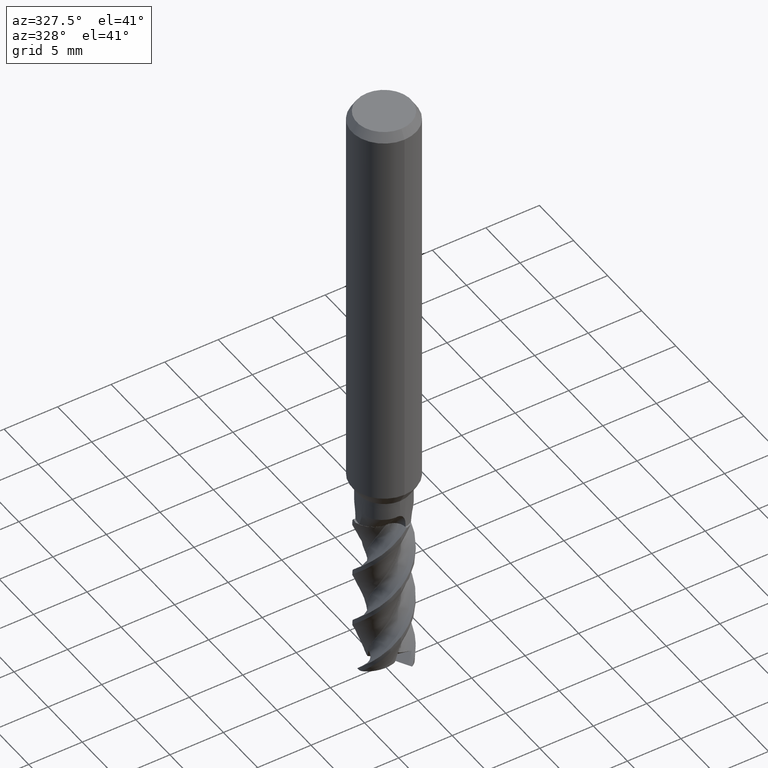
[diagram: clean part render]
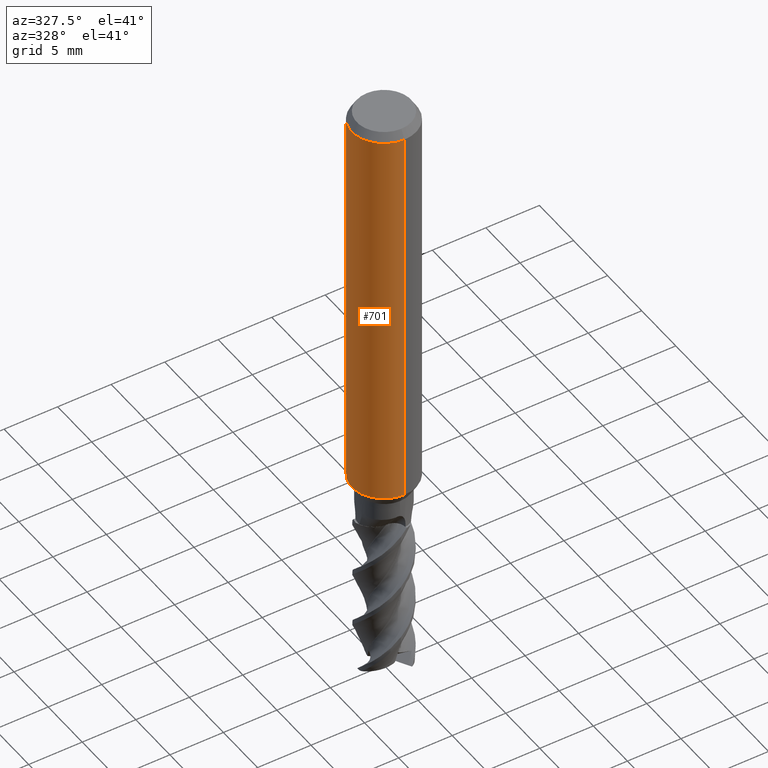
[diagram: same view with one face highlighted and labeled with its STEP entity id]
A machine part, auxiliary view. The second image highlights one B-rep face of the part: STEP entity #701.
In plain terms, the highlighted cylindrical surface (partial cylindrical patch) has radius 3 mm, axis along (-0, -0, 1).
Its self-contained STEP definition (entity closure, byte-faithful):
#487=EDGE_CURVE('',#821,#565,#1403,.T.);
#495=EDGE_CURVE('',#1071,#1151,#1412,.T.);
#565=VERTEX_POINT('',#1494);
#575=EDGE_CURVE('',#565,#1249,#1505,.T.);
#607=EDGE_CURVE('',#1151,#961,#1542,.T.);
#661=EDGE_CURVE('',#1065,#821,#1599,.T.);
#663=EDGE_CURVE('',#807,#961,#1601,.T.);
#697=EDGE_CURVE('',#731,#1071,#1637,.T.);
#701=ADVANCED_FACE('',(#1641,#1642,#1643),#1644,.T.);
#703=EDGE_CURVE('',#709,#731,#1646,.T.);
#709=VERTEX_POINT('',#1653);
#731=VERTEX_POINT('',#1680);
#777=VERTEX_POINT('',#1729);
#807=VERTEX_POINT('',#1762);
#809=VERTEX_POINT('',#1764);
#821=VERTEX_POINT('',#1776);
#831=VERTEX_POINT('',#1787);
#847=EDGE_CURVE('',#1051,#777,#1803,.T.);
#855=EDGE_CURVE('',#1089,#1051,#1812,.T.);
#857=EDGE_CURVE('',#807,#1295,#1814,.T.);
#867=EDGE_CURVE('',#777,#1089,#1824,.T.);
#961=VERTEX_POINT('',#1925);
#977=EDGE_CURVE('',#1249,#809,#1941,.T.);
#1051=VERTEX_POINT('',#2021);
#1059=EDGE_CURVE('',#831,#709,#2029,.T.);
#1065=VERTEX_POINT('',#2035);
#1071=VERTEX_POINT('',#2041);
#1089=VERTEX_POINT('',#2060);
#1151=VERTEX_POINT('',#2128);
#1165=EDGE_CURVE('',#809,#1065,#2144,.T.);
#1209=EDGE_CURVE('',#1295,#831,#2195,.T.);
#1249=VERTEX_POINT('',#2236);
#1295=VERTEX_POINT('',#2285);
#1403=B_SPLINE_CURVE_WITH_KNOTS('',3,(#2407,#2408,#2409,#2410,#2411,#2412,#2413,#2414,#2415,#2416,#2417,#2418,#2419,#2420,#2421,#2422,#2423,#2424,#2425,#2426,#2427,#2428,#2429,#2430,#2431,#2432,#2433),.UNSPECIFIED.,.F.,.F.,(4,2,3,2,2,2,2,2,2,2,2,2,4),(-0.361797878080094,-0.180898939040047,0.0,0.180898939040045,0.36179787808009,0.54316499674529,0.72453211541049,0.905110773244762,1.08568943107903,1.26650066090355,1.44731189072806,1.62812312055258,1.8089343503771),.UNSPECIFIED.);
#1412=ELLIPSE('',#2774,4.24264068711928,3.0);
#1494=CARTESIAN_POINT('',(-0.324247225918626,2.98242581407888,-32.302948685318));
#1505=B_SPLINE_CURVE_WITH_KNOTS('',3,(#4511,#4512,#4513,#4514,#4515,#4516,#4517,#4518,#4519,#4520,#4521,#4522,#4523,#4524,#4525,#4526,#4527,#4528,#4529,#4530,#4531,#4532,#4533,#4534,#4535,#4536,#4537),.UNSPECIFIED.,.F.,.F.,(4,2,3,2,2,2,2,2,2,2,2,2,4),(-0.361797878080094,-0.180898939040047,0.0,0.180898939040045,0.36179787808009,0.54316499674529,0.72453211541049,0.905110773244762,1.08568943107903,1.26650066090355,1.44731189072806,1.62812312055258,1.8089343503771),.UNSPECIFIED.);
#1542=LINE('',#4746,#4747);
#1599=LINE('',#4851,#4852);
#1601=CIRCLE('',#4855,3.0);
#1637=LINE('',#4934,#4935);
#1641=FACE_OUTER_BOUND('',#4939,.T.);
#1642=FACE_BOUND('',#4940,.T.);
#1643=FACE_BOUND('',#4941,.T.);
#1644=CYLINDRICAL_SURFACE('',#4942,3.0);
#1646=ELLIPSE('',#4945,4.24264068711928,3.0);
#1653=CARTESIAN_POINT('',(-3.67381906146713E-016,3.0,-14.7));
#1680=CARTESIAN_POINT('',(-2.4,1.8,-15.9));
#1729=CARTESIAN_POINT('',(-0.891353646972586,2.86452241674396,-33.4554605734399));
#1762=CARTESIAN_POINT('',(3.67381906146713E-016,-3.0,-37.874));
#1764=CARTESIAN_POINT('',(-0.690037436273681,2.9195630386311,-32.0855112759038));
#1776=CARTESIAN_POINT('',(-0.0173204359060843,2.99995000000001,-32.5520642368952));
#1787=CARTESIAN_POINT('',(0.0,3.0,-0.799999999999997));
#1803=ELLIPSE('',#6117,3.34478529612858,3.0);
#1812=LINE('',#6127,#6128);
#1814=LINE('',#6131,#6132);
#1824=B_SPLINE_CURVE_WITH_KNOTS('',3,(#6155,#6156,#6157,#6158,#6159,#6160,#6161,#6162,#6163,#6164),.UNSPECIFIED.,.F.,.F.,(4,2,2,2,4),(3.71798730591324,4.13127027719932,4.54460961578537,4.95794895437142,5.37052319276391),.UNSPECIFIED.);
#1925=CARTESIAN_POINT('',(0.0,3.0,-37.874));
#1941=CIRCLE('',#7285,3.0);
#2021=CARTESIAN_POINT('',(-0.017320435906062,2.99995,-33.024547655354));
#2029=LINE('',#8032,#8033);
#2035=CARTESIAN_POINT('',(-0.0173204359060475,2.99995,-32.8717581803456));
#2041=CARTESIAN_POINT('',(-2.4,1.8,-20.1));
#2060=CARTESIAN_POINT('',(-0.0173204359060174,2.99995,-33.8949133845535));
#2128=CARTESIAN_POINT('',(-3.67381906146713E-016,3.0,-21.3));
#2144=B_SPLINE_CURVE_WITH_KNOTS('',3,(#8813,#8814,#8815,#8816,#8817,#8818,#8819,#8820,#8821,#8822,#8823,#8824,#8825,#8826),.UNSPECIFIED.,.F.,.F.,(4,2,2,2,2,2,4),(2.091097645352,2.38959558480883,2.68809352426566,2.9865914637225,3.28432857408576,3.58206568444903,3.88185771191667),.UNSPECIFIED.);
#2195=CIRCLE('',#8952,3.0);
#2236=CARTESIAN_POINT('',(-0.374883079288044,2.9764849532399,-32.0855112759038));
#2285=CARTESIAN_POINT('',(3.67381906146713E-016,-3.0,-0.799999999999997));
#2407=CARTESIAN_POINT('',(0.443451175650266,2.96704416125113,-31.7498764058061));
#2408=CARTESIAN_POINT('',(0.485825230520439,2.96071098134951,-31.7923072631594));
#2409=CARTESIAN_POINT('',(0.522628634598452,2.95423041401874,-31.8460565977037));
#2410=CARTESIAN_POINT('',(0.571515479073374,2.94516350896329,-31.9640093998545));
#2411=CARTESIAN_POINT('',(0.583590928420811,2.94268952291351,-32.0282247886017));
#2412=CARTESIAN_POINT('',(0.583590928420811,2.94268952291351,-32.0885244349484));
#2413=CARTESIAN_POINT('',(0.583590928420811,2.94268952291351,-32.1488240812951));
#2414=CARTESIAN_POINT('',(0.571515479073372,2.94516350896329,-32.2130394700424));
#2415=CARTESIAN_POINT('',(0.52262863459845,2.95423041401874,-32.3309922721932));
#2416=CARTESIAN_POINT('',(0.485825230520439,2.96071098134951,-32.3847416067375));
#2417=CARTESIAN_POINT('',(0.400967453640913,2.97339373188344,-32.4697131355921));
#2418=CARTESIAN_POINT('',(0.347160591378601,2.98043595390805,-32.5066186343397));
#2419=CARTESIAN_POINT('',(0.229067490754346,2.99183004798448,-32.5556491335629));
#2420=CARTESIAN_POINT('',(0.164768311964613,2.99608182394725,-32.5677661750437));
#2421=CARTESIAN_POINT('',(0.0441927259273236,3.00027835150232,-32.5677661750437));
#2422=CARTESIAN_POINT('',(-0.0199849147074392,3.00051422459916,-32.5557432311485));
#2423=CARTESIAN_POINT('',(-0.138011899975601,2.99740516520177,-32.5068705536194));
#2424=CARTESIAN_POINT('',(-0.191865153226538,2.99416206152009,-32.4700238345305));
#2425=CARTESIAN_POINT('',(-0.276951356845972,2.9874941541864,-32.3850104084073));
#2426=CARTESIAN_POINT('',(-0.313857517624861,2.98363884435361,-32.3311404765947));
#2427=CARTESIAN_POINT('',(-0.362829872721119,2.97808021777493,-32.21303592618));
#2428=CARTESIAN_POINT('',(-0.374892551769672,2.97648376018208,-32.1487948448899));
#2429=CARTESIAN_POINT('',(-0.374892551769672,2.97648376018208,-32.0282540250069));
#2430=CARTESIAN_POINT('',(-0.36282987272112,2.97808021777493,-31.9640129437168));
#2431=CARTESIAN_POINT('',(-0.31385751762486,2.98363884435361,-31.8459083933022));
#2432=CARTESIAN_POINT('',(-0.276951356845972,2.9874941541864,-31.7920384614896));
#2433=CARTESIAN_POINT('',(-0.234380876478644,2.99083025341478,-31.7495043932883));
#2774=AXIS2_PLACEMENT_3D('',#10399,#10400,#10401);
#4511=CARTESIAN_POINT('',(0.443451175650266,2.96704416125113,-31.7498764058061));
#4512=CARTESIAN_POINT('',(0.485825230520439,2.96071098134951,-31.7923072631594));
#4513=CARTESIAN_POINT('',(0.522628634598452,2.95423041401874,-31.8460565977037));
#4514=CARTESIAN_POINT('',(0.571515479073374,2.94516350896329,-31.9640093998545));
#4515=CARTESIAN_POINT('',(0.583590928420811,2.94268952291351,-32.0282247886017));
#4516=CARTESIAN_POINT('',(0.583590928420811,2.94268952291351,-32.0885244349484));
#4517=CARTESIAN_POINT('',(0.583590928420811,2.94268952291351,-32.1488240812951));
#4518=CARTESIAN_POINT('',(0.571515479073372,2.94516350896329,-32.2130394700424));
#4519=CARTESIAN_POINT('',(0.52262863459845,2.95423041401874,-32.3309922721932));
#4520=CARTESIAN_POINT('',(0.485825230520439,2.96071098134951,-32.3847416067375));
#4521=CARTESIAN_POINT('',(0.400967453640913,2.97339373188344,-32.4697131355921));
#4522=CARTESIAN_POINT('',(0.347160591378601,2.98043595390805,-32.5066186343397));
#4523=CARTESIAN_POINT('',(0.229067490754346,2.99183004798448,-32.5556491335629));
#4524=CARTESIAN_POINT('',(0.164768311964613,2.99608182394725,-32.5677661750437));
#4525=CARTESIAN_POINT('',(0.0441927259273236,3.00027835150232,-32.5677661750437));
#4526=CARTESIAN_POINT('',(-0.0199849147074392,3.00051422459916,-32.5557432311485));
#4527=CARTESIAN_POINT('',(-0.138011899975601,2.99740516520177,-32.5068705536194));
#4528=CARTESIAN_POINT('',(-0.191865153226538,2.99416206152009,-32.4700238345305));
#4529=CARTESIAN_POINT('',(-0.276951356845972,2.9874941541864,-32.3850104084073));
#4530=CARTESIAN_POINT('',(-0.313857517624861,2.98363884435361,-32.3311404765947));
#4531=CARTESIAN_POINT('',(-0.362829872721119,2.97808021777493,-32.21303592618));
#4532=CARTESIAN_POINT('',(-0.374892551769672,2.97648376018208,-32.1487948448899));
#4533=CARTESIAN_POINT('',(-0.374892551769672,2.97648376018208,-32.0282540250069));
#4534=CARTESIAN_POINT('',(-0.36282987272112,2.97808021777493,-31.9640129437168));
#4535=CARTESIAN_POINT('',(-0.31385751762486,2.98363884435361,-31.8459083933022));
#4536=CARTESIAN_POINT('',(-0.276951356845972,2.9874941541864,-31.7920384614896));
#4537=CARTESIAN_POINT('',(-0.234380876478644,2.99083025341478,-31.7495043932883));
#4746=CARTESIAN_POINT('',(-3.67381906146713E-016,3.0,-19.337));
#4747=VECTOR('',#10592,1.0);
#4851=CARTESIAN_POINT('',(-0.017320435906062,2.99995,-32.8845073647412));
#4852=VECTOR('',#10635,1.0);
#4855=AXIS2_PLACEMENT_3D('',#10636,#10637,#10638);
#4934=CARTESIAN_POINT('',(-2.4,1.8,-18.0));
#4935=VECTOR('',#10676,1.0);
#4939=EDGE_LOOP('',(#10678,#10679,#10680,#10681,#10682,#10683,#10684,#10685));
#4940=EDGE_LOOP('',(#10686,#10687,#10688));
#4941=EDGE_LOOP('',(#10689,#10690,#10691,#10692,#10693));
#4942=AXIS2_PLACEMENT_3D('',#10694,#10695,#10696);
#4945=AXIS2_PLACEMENT_3D('',#10697,#10698,#10699);
#6117=AXIS2_PLACEMENT_3D('',#10829,#10830,#10831);
#6127=CARTESIAN_POINT('',(-0.017320435906062,2.99995,-32.8845073647412));
#6128=VECTOR('',#10840,1.0);
#6131=CARTESIAN_POINT('',(3.67381906146713E-016,-3.0,-19.337));
#6132=VECTOR('',#10841,1.0);
#6155=CARTESIAN_POINT('',(-1.0213107725762,2.82080206782039,-33.2263603909889));
#6156=CARTESIAN_POINT('',(-0.965748326062899,2.84091920915678,-33.359858656383));
#6157=CARTESIAN_POINT('',(-0.882474008253196,2.86898278727422,-33.4810393018291));
#6158=CARTESIAN_POINT('',(-0.691181971660376,2.92097462682348,-33.6724209134462));
#6159=CARTESIAN_POINT('',(-0.569939118101214,2.94845792845378,-33.7558242986056));
#6160=CARTESIAN_POINT('',(-0.302738780934601,2.98773894197887,-33.8671051738375));
#6161=CARTESIAN_POINT('',(-0.156684840798735,2.99907204453492,-33.8949145449035));
#6162=CARTESIAN_POINT('',(0.118614216879023,3.00080717863586,-33.8949145449035));
#6163=CARTESIAN_POINT('',(0.264548965222022,2.99134988491468,-33.8671974310104));
#6164=CARTESIAN_POINT('',(0.398117192990065,2.97346644518577,-33.8116337934181));
#7285=AXIS2_PLACEMENT_3D('',#10945,#10946,#10947);
#8032=CARTESIAN_POINT('',(-3.67381906146713E-016,3.0,-19.337));
#8033=VECTOR('',#11030,1.0);
#8813=CARTESIAN_POINT('',(-0.629727328037685,2.93316271153213,-31.7890913557644));
#8814=CARTESIAN_POINT('',(-0.670089755997728,2.92449721450026,-31.8862639601135));
#8815=CARTESIAN_POINT('',(-0.690061178540055,2.91955742705498,-31.9921316354559));
#8816=CARTESIAN_POINT('',(-0.690061178540055,2.91955742705498,-32.1911302617605));
#8817=CARTESIAN_POINT('',(-0.67008975599773,2.92449721450026,-32.2969979371029));
#8818=CARTESIAN_POINT('',(-0.589364900077662,2.94182820856402,-32.4913431458012));
#8819=CARTESIAN_POINT('',(-0.5286299692125,2.95390696563364,-32.5798560999866));
#8820=CARTESIAN_POINT('',(-0.388825924618278,2.97553438372319,-32.7194507471901));
#8821=CARTESIAN_POINT('',(-0.300374998568302,2.98650953771095,-32.7800152917628));
#8822=CARTESIAN_POINT('',(-0.106252469502455,2.99969577970094,-32.8604637231012));
#8823=CARTESIAN_POINT('',(-0.000555188223129333,3.0016411180253,-32.8803289843056));
#8824=CARTESIAN_POINT('',(0.198513504569518,2.99509240733468,-32.8803289843056));
#8825=CARTESIAN_POINT('',(0.304528894401641,2.98611319488251,-32.860217470731));
#8826=CARTESIAN_POINT('',(0.401676121348873,2.97298777218106,-32.8197873850085));
#8952=AXIS2_PLACEMENT_3D('',#11244,#11245,#11246);
#10399=CARTESIAN_POINT('',(0.0,0.0,-18.3));
#10400=DIRECTION('',(0.0,-0.707106781186547,-0.707106781186548));
#10401=DIRECTION('',(0.0,0.707106781186548,-0.707106781186547));
#10592=DIRECTION('',(0.0,0.0,-1.0));
#10635=DIRECTION('',(-0.0,-0.0,1.0));
#10636=CARTESIAN_POINT('',(0.0,0.0,-37.874));
#10637=DIRECTION('',(0.0,0.0,-1.0));
#10638=DIRECTION('',(0.0,1.0,0.0));
#10676=DIRECTION('',(0.0,0.0,-1.0));
#10678=ORIENTED_EDGE('',*,*,#1059,.T.);
#10679=ORIENTED_EDGE('',*,*,#703,.T.);
#10680=ORIENTED_EDGE('',*,*,#697,.T.);
#10681=ORIENTED_EDGE('',*,*,#495,.T.);
#10682=ORIENTED_EDGE('',*,*,#607,.T.);
#10683=ORIENTED_EDGE('',*,*,#663,.F.);
#10684=ORIENTED_EDGE('',*,*,#857,.T.);
#10685=ORIENTED_EDGE('',*,*,#1209,.T.);
#10686=ORIENTED_EDGE('',*,*,#867,.T.);
#10687=ORIENTED_EDGE('',*,*,#855,.T.);
#10688=ORIENTED_EDGE('',*,*,#847,.T.);
#10689=ORIENTED_EDGE('',*,*,#487,.T.);
#10690=ORIENTED_EDGE('',*,*,#575,.T.);
#10691=ORIENTED_EDGE('',*,*,#977,.T.);
#10692=ORIENTED_EDGE('',*,*,#1165,.T.);
#10693=ORIENTED_EDGE('',*,*,#661,.T.);
#10694=CARTESIAN_POINT('',(0.0,0.0,-19.337));
#10695=DIRECTION('',(-0.0,-0.0,1.0));
#10696=DIRECTION('',(0.0,1.0,0.0));
#10697=CARTESIAN_POINT('',(0.0,0.0,-17.7));
#10698=DIRECTION('',(0.0,-0.707106781186547,0.707106781186548));
#10699=DIRECTION('',(0.0,0.707106781186548,0.707106781186547));
#10829=CARTESIAN_POINT('',(0.0,0.0,-33.0160083922181));
#10830=DIRECTION('',(-0.442195774284071,0.0,0.896918556617774));
#10831=DIRECTION('',(0.896918556617774,-0.0,0.442195774284071));
#10840=DIRECTION('',(-0.0,-0.0,1.0));
#10841=DIRECTION('',(-0.0,-0.0,1.0));
#10945=CARTESIAN_POINT('',(0.0,0.0,-32.0855112759038));
#10946=DIRECTION('',(0.0,-0.0,1.0));
#10947=DIRECTION('',(0.0,1.0,0.0));
#11030=DIRECTION('',(0.0,0.0,-1.0));
#11244=CARTESIAN_POINT('',(0.0,0.0,-0.799999999999997));
#11245=DIRECTION('',(0.0,0.0,-1.0));
#11246=DIRECTION('',(0.0,1.0,0.0));